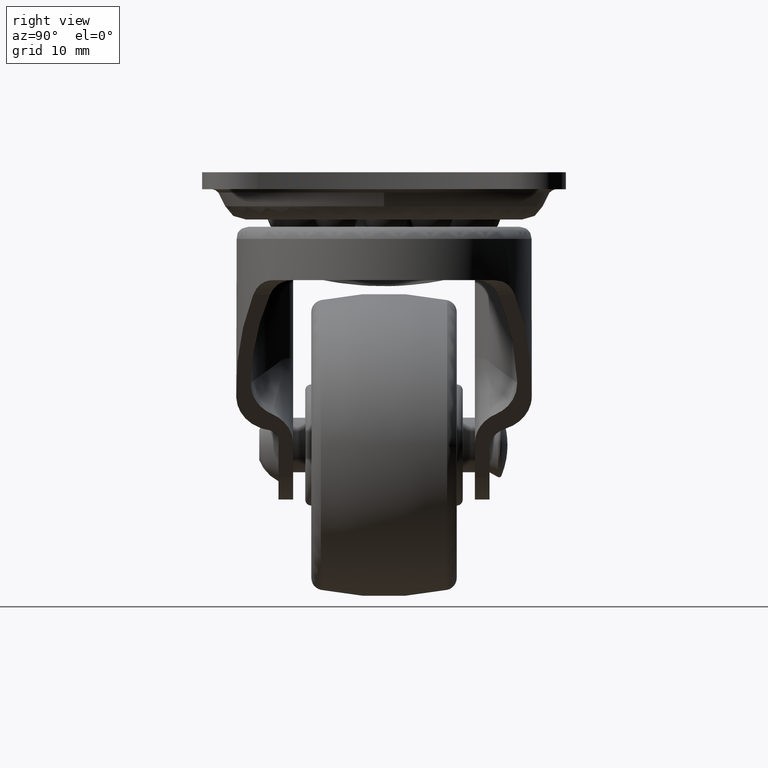
[diagram: clean part render]
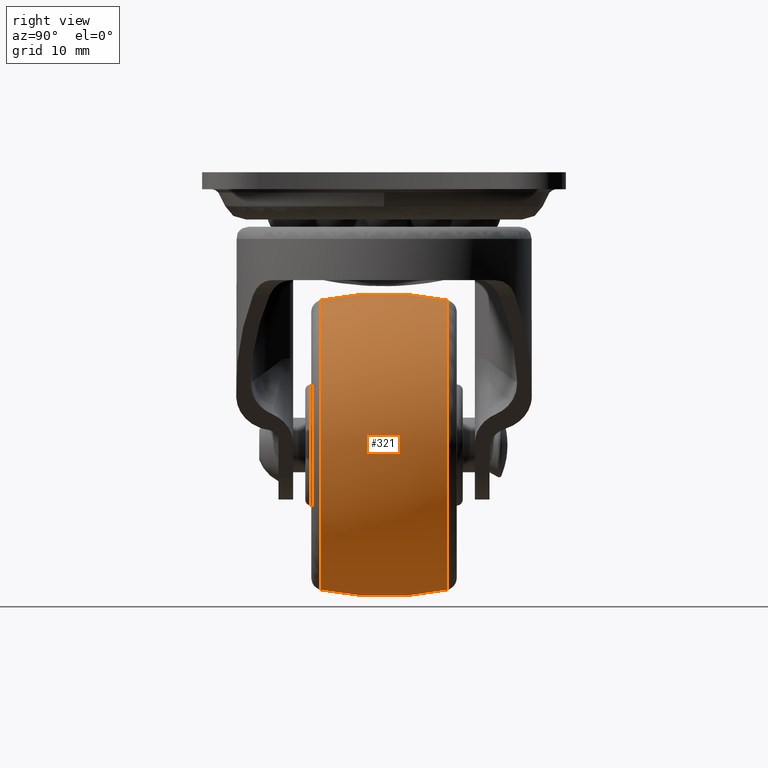
[diagram: same view with one face highlighted and labeled with its STEP entity id]
A machine part, right view. The second image highlights one B-rep face of the part: STEP entity #321.
In plain terms, the highlighted face is a freeform B-spline surface patch.
Its self-contained STEP definition (entity closure, byte-faithful):
#321=ADVANCED_FACE('',(#1455),#1454,.T.);
#1454=( BOUNDED_SURFACE() B_SPLINE_SURFACE( 2,2,((#4128,#4129,#4130,#4131,#4132),(#4133,#4134,#4135,#4136,#4137),(#4138,#4139,#4140,#4141,#4142)), .UNSPECIFIED.,.F.,.F.,.F.) B_SPLINE_SURFACE_WITH_KNOTS((3,3),(3,2,3),(-2.09870592263E-01,2.09870592263E-01),(0.00000000000E+00,1.57079632679E+00,3.14159265359E+00), .UNSPECIFIED. ) GEOMETRIC_REPRESENTATION_ITEM() RATIONAL_B_SPLINE_SURFACE(((1.00000000000E+00,7.07106781187E-01,1.00000000000E+00,7.07106781187E-01,1.00000000000E+00),(9.78057882859E-01,6.91591361362E-01,9.78057882859E-01,6.91591361362E-01,9.78057882859E-01),(1.00000000000E+00,7.07106781187E-01,1.00000000000E+00,7.07106781187E-01,1.00000000000E+00))) REPRESENTATION_ITEM('') SURFACE() );
#1455=FACE_OUTER_BOUND('',#4143,.T.);
#4128=CARTESIAN_POINT('',(-9.00000000000E+00,5.20833333333E+00,-1.05485509285E+01));
#4129=CARTESIAN_POINT('',(2.95144707147E+00,5.20833333333E+00,-1.05485509285E+01));
#4130=CARTESIAN_POINT('',(2.95144707147E+00,5.20833333333E+00,-2.24999980000E+01));
#4131=CARTESIAN_POINT('',(2.95144707147E+00,5.20833333333E+00,-3.44514450715E+01));
#4132=CARTESIAN_POINT('',(-9.00000000000E+00,5.20833333333E+00,-3.44514450715E+01));
#4133=CARTESIAN_POINT('',(-9.00000000000E+00,3.55271367880E-15,-9.43913862946E+00));
#4134=CARTESIAN_POINT('',(4.06085937054E+00,3.55271367880E-15,-9.43913862946E+00));
#4135=CARTESIAN_POINT('',(4.06085937054E+00,3.55271367880E-15,-2.24999980000E+01));
#4136=CARTESIAN_POINT('',(4.06085937054E+00,3.55271367880E-15,-3.55608573705E+01));
#4137=CARTESIAN_POINT('',(-9.00000000000E+00,3.55271367880E-15,-3.55608573705E+01));
#4138=CARTESIAN_POINT('',(-9.00000000000E+00,-5.20833333333E+00,-1.05485509285E+01));
#4139=CARTESIAN_POINT('',(2.95144707147E+00,-5.20833333333E+00,-1.05485509285E+01));
#4140=CARTESIAN_POINT('',(2.95144707147E+00,-5.20833333333E+00,-2.24999980000E+01));
#4141=CARTESIAN_POINT('',(2.95144707147E+00,-5.20833333333E+00,-3.44514450715E+01));
#4142=CARTESIAN_POINT('',(-9.00000000000E+00,-5.20833333333E+00,-3.44514450715E+01));
#4143=EDGE_LOOP('',(#5837,#5838,#5839,#5840));
#5837=ORIENTED_EDGE('',*,*,#6674,.T.);
#5838=ORIENTED_EDGE('',*,*,#6675,.T.);
#5839=ORIENTED_EDGE('',*,*,#6676,.F.);
#5840=ORIENTED_EDGE('',*,*,#6677,.F.);
#6674=EDGE_CURVE('',#8639,#8638,#8658,.T.);
#6675=EDGE_CURVE('',#8638,#8664,#8665,.T.);
#6676=EDGE_CURVE('',#8671,#8664,#8672,.T.);
#6677=EDGE_CURVE('',#8639,#8671,#8678,.T.);
#8638=VERTEX_POINT('',#11965);
#8639=VERTEX_POINT('',#11966);
#8658=CIRCLE('',#11980,1.19514470715E+01);
#8664=VERTEX_POINT('',#11981);
#8665=(BOUNDED_CURVE() B_SPLINE_CURVE(2,(#11982,#11983,#11984),.UNSPECIFIED.,.F.,.F.) B_SPLINE_CURVE_WITH_KNOTS((3,3),(-2.09870592263E-01,2.09870592263E-01),.UNSPECIFIED.) CURVE() GEOMETRIC_REPRESENTATION_ITEM() RATIONAL_B_SPLINE_CURVE((1.00000000000E+00,9.78057882859E-01,1.00000000000E+00)) REPRESENTATION_ITEM('') );
#8671=VERTEX_POINT('',#11985);
#8672=CIRCLE('',#11989,1.19514470715E+01);
#8678=(BOUNDED_CURVE() B_SPLINE_CURVE(2,(#11990,#11991,#11992),.UNSPECIFIED.,.F.,.F.) B_SPLINE_CURVE_WITH_KNOTS((3,3),(-2.09870592263E-01,2.09870592263E-01),.UNSPECIFIED.) CURVE() GEOMETRIC_REPRESENTATION_ITEM() RATIONAL_B_SPLINE_CURVE((1.00000000000E+00,9.78057882859E-01,1.00000000000E+00)) REPRESENTATION_ITEM('') );
#11965=CARTESIAN_POINT('',(-9.00000000000E+00,5.20833333333E+00,-1.05485509285E+01));
#11966=CARTESIAN_POINT('',(-9.00000000000E+00,5.20833333333E+00,-3.44514450715E+01));
#11977=CARTESIAN_POINT('',(-9.00000000000E+00,5.20833333333E+00,-2.24999980000E+01));
#11978=DIRECTION('',(0.00000000000E+00,-1.00000000000E+00,-0.00000000000E+00));
#11979=DIRECTION('',(-1.22460635382E-16,0.00000000000E+00,-1.00000000000E+00));
#11980=AXIS2_PLACEMENT_3D('',#11977,#11978,#11979);
#11981=CARTESIAN_POINT('',(-9.00000000000E+00,-5.20833333333E+00,-1.05485509285E+01));
#11982=CARTESIAN_POINT('',(-9.00000000000E+00,5.20833333333E+00,-1.05485509285E+01));
#11983=CARTESIAN_POINT('',(-9.00000000000E+00,3.55271367880E-15,-9.43913862946E+00));
#11984=CARTESIAN_POINT('',(-9.00000000000E+00,-5.20833333333E+00,-1.05485509285E+01));
#11985=CARTESIAN_POINT('',(-9.00000000000E+00,-5.20833333333E+00,-3.44514450715E+01));
#11986=CARTESIAN_POINT('',(-9.00000000000E+00,-5.20833333333E+00,-2.24999980000E+01));
#11987=DIRECTION('',(0.00000000000E+00,-1.00000000000E+00,-0.00000000000E+00));
#11988=DIRECTION('',(-1.22460635382E-16,0.00000000000E+00,-1.00000000000E+00));
#11989=AXIS2_PLACEMENT_3D('',#11986,#11987,#11988);
#11990=CARTESIAN_POINT('',(-9.00000000000E+00,5.20833333333E+00,-3.44514450715E+01));
#11991=CARTESIAN_POINT('',(-9.00000000000E+00,3.55271367880E-15,-3.55608573705E+01));
#11992=CARTESIAN_POINT('',(-9.00000000000E+00,-5.20833333333E+00,-3.44514450715E+01));